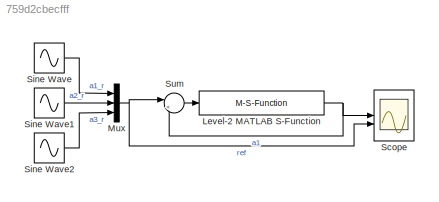
MODEL slx_759d2cbecfff
KIND model
CONFIG AbsTol = auto
CONFIG EnableMultiTasking = off
CONFIG FixedStep = auto
CONFIG MaxStep = auto
CONFIG MinStep = auto
CONFIG RelTol = 1e-3
CONFIG SampleTimeConstraint = Unconstrained
CONFIG SolverName = VariableStepAuto
CONFIG StartTime = 0.0
CONFIG StopTime = 0.05
BLOCK [M-S-Function] Level-2 MATLAB S-Function
  FunctionName = phantom_omni_sfun
  Parameters = 0.001, 0, [200;200;200], [50;50;50], [20;20;20], 0.001, 2, 1, 0.5, 0.4, 0.3
BLOCK [Mux] Mux
  DisplayOption = bar
  Inputs = 3
BLOCK [Scope] Scope
  Floating = off
  NumInputPorts = 2
  ScopeSpecificationString = Simulink.scopes.TimeScopeBlockCfg('CurrentConfiguration', extmgr.ConfigurationSet(extmgr.Configuration('Core','General UI',true,'FigureColor',[1 1 1]),extmgr.Configuration('Core','Source UI',true),extmgr.Configuration('Sources','WiredSimulink',true,'DataLoggingVariableName','logsout','DataLogging',true),extmgr.Configuration('Visuals','Time Domain',true,'SerializedDisplays',{struct('MinYLimReal','-...<+2255ch>
BLOCK [Sin] Sine Wave
  Amplitude = 0.1
  Frequency = 628.3185
  SampleTime = 0
BLOCK [Sin] Sine Wave1
  Amplitude = 0.1
  Frequency = 628.3185
  Phase = pi/6
  SampleTime = 0
BLOCK [Sin] Sine Wave2
  Amplitude = 0.1
  Frequency = 628.3185
  Phase = pi/3
  SampleTime = 0
BLOCK [Sum] Sum
  Inputs = |+-
NET Level-2 MATLAB S-Function:1 -> Scope:1, Sum:2
NET Mux:1 -> Scope:2, Sum:1
LINE Sine Wave1:1 -> Mux:2
LINE Sine Wave2:1 -> Mux:3
LINE Sine Wave:1 -> Mux:1
LINE Sum:1 -> Level-2 MATLAB S-Function:1
note: NET lines group one-source signal fan-out (src -> all destinations, sorted); 1:1 wires keep LINE
